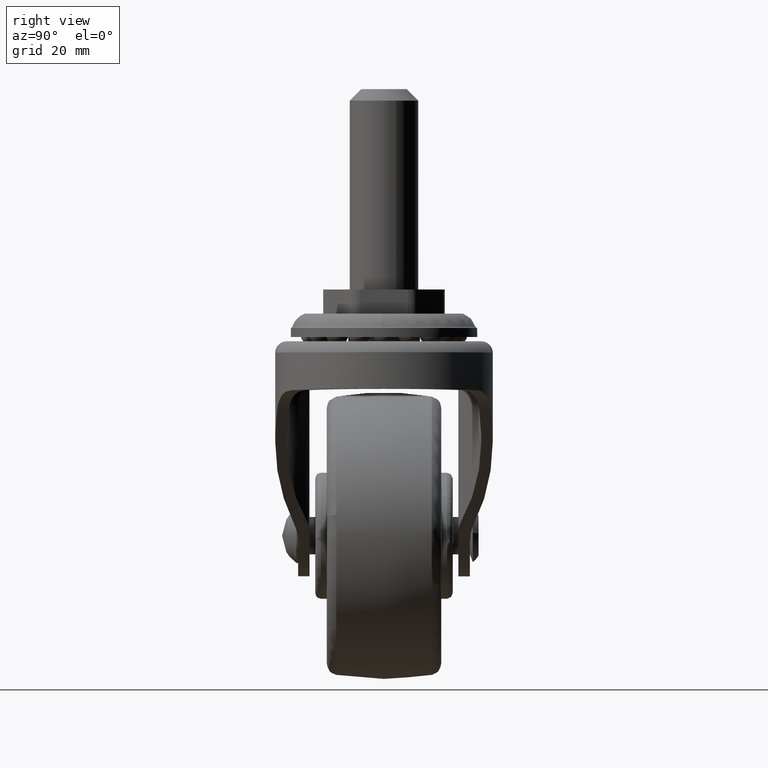
[diagram: clean part render]
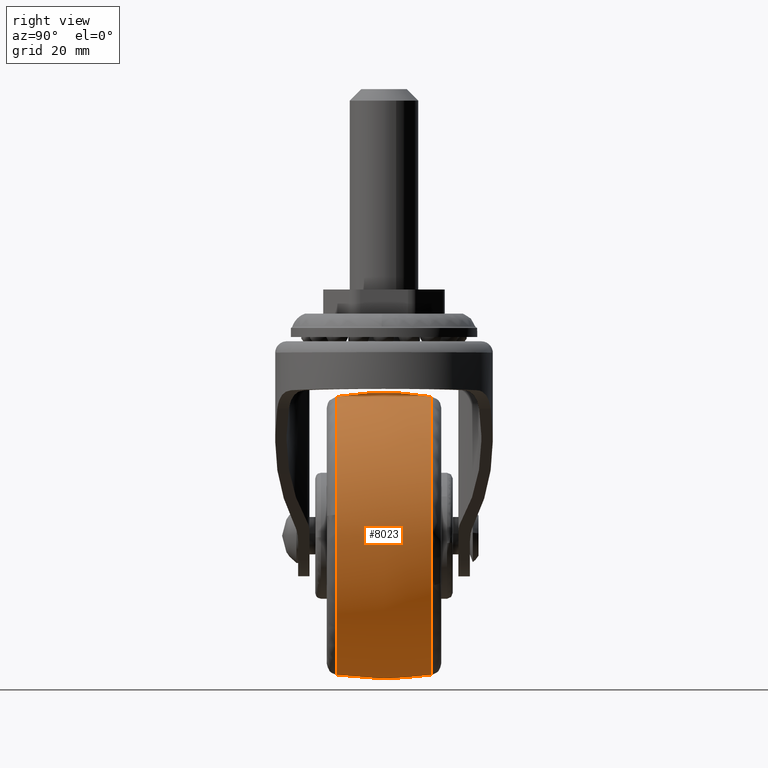
[diagram: same view with one face highlighted and labeled with its STEP entity id]
A machine part, right view. The second image highlights one B-rep face of the part: STEP entity #8023.
In plain terms, the highlighted face is a freeform B-spline surface patch.
Its self-contained STEP definition (entity closure, byte-faithful):
#7509=CARTESIAN_POINT('',(6.400181392199420,-8.333334967038301,-23.442696500243450));
#7510=VERTEX_POINT('',#7509);
#7524=CARTESIAN_POINT('',(24.024899403702388,-8.333334031540151,3.650555248361826));
#7525=VERTEX_POINT('',#7524);
#7526=CARTESIAN_POINT('',(6.400181392199420,-8.333334967038301,-23.442696500243450));
#7527=CARTESIAN_POINT('',(24.300664601270750,-8.333334620679352,-18.555615316724275));
#7528=CARTESIAN_POINT('',(24.300664601270750,-8.333333850788053,0.000000170426897));
#7529=CARTESIAN_POINT('',(24.300664601270750,-8.333333774623277,1.835693446677080));
#7530=CARTESIAN_POINT('',(24.024899403702388,-8.333334031540151,3.650555248361826));
#7538=(BOUNDED_CURVE()B_SPLINE_CURVE(2,(#7526,#7527,#7528,#7529,#7530),.UNSPECIFIED.,.F.,.U.)B_SPLINE_CURVE_WITH_KNOTS((3,2,3),(0.044901926740031,0.250000000000000,0.275897398586561),.UNSPECIFIED.)CURVE()GEOMETRIC_REPRESENTATION_ITEM()RATIONAL_B_SPLINE_CURVE((0.913685083918281,0.759712660601802,1.0,0.969659310276349,0.945604580034014))REPRESENTATION_ITEM(''));
#7539=EDGE_CURVE('',#7510,#7525,#7538,.T.);
#7638=CARTESIAN_POINT('',(0.0,-8.333332842528836,24.300664942124541));
#7639=VERTEX_POINT('',#7638);
#7640=CARTESIAN_POINT('',(24.024899403702388,-8.333334031540151,3.650555248361826));
#7641=CARTESIAN_POINT('',(20.887138773752781,-8.333332842528838,24.300664942124534));
#7642=CARTESIAN_POINT('',(0.0,-8.333332842528836,24.300664942124541));
#7650=(BOUNDED_CURVE()B_SPLINE_CURVE(2,(#7640,#7641,#7642),.UNSPECIFIED.,.F.,.U.)B_SPLINE_CURVE_WITH_KNOTS((3,3),(0.275897398586561,0.500000000000000),.UNSPECIFIED.)CURVE()GEOMETRIC_REPRESENTATION_ITEM()RATIONAL_B_SPLINE_CURVE((0.945604580034014,0.737447470910199,1.0))REPRESENTATION_ITEM(''));
#7651=EDGE_CURVE('',#7525,#7639,#7650,.T.);
#7653=CARTESIAN_POINT('',(-24.138134129548948,-8.333342891131142,2.805835850909152));
#7654=VERTEX_POINT('',#7653);
#7668=CARTESIAN_POINT('',(0.0,-8.333334859047270,-24.300664601270750));
#7669=VERTEX_POINT('',#7668);
#7670=CARTESIAN_POINT('',(-24.138134129548945,-8.333342891131142,2.805835850909153));
#7671=CARTESIAN_POINT('',(-24.300663287451890,-8.333342683975191,1.407625131903747));
#7672=CARTESIAN_POINT('',(-24.300663326510989,-8.333342451344427,-0.000000148179087));
#7673=CARTESIAN_POINT('',(-24.300664000811345,-8.333338435302490,-24.300664671068628));
#7674=CARTESIAN_POINT('',(0.0,-8.333334859047270,-24.300664601270750));
#7682=(BOUNDED_CURVE()B_SPLINE_CURVE(2,(#7670,#7671,#7672,#7673,#7674),.UNSPECIFIED.,.F.,.U.)B_SPLINE_CURVE_WITH_KNOTS((3,2,3),(0.730000150686247,0.750000000000000,1.0),.UNSPECIFIED.)CURVE()GEOMETRIC_REPRESENTATION_ITEM()RATIONAL_B_SPLINE_CURVE((0.956886414777938,0.976568719034844,1.0,0.707106781186548,1.0))REPRESENTATION_ITEM(''));
#7683=EDGE_CURVE('',#7654,#7669,#7682,.T.);
#7685=CARTESIAN_POINT('',(0.0,-8.333334859047270,-24.300664601270750));
#7686=CARTESIAN_POINT('',(3.257597601525596,-8.333334859047270,-24.300664601270743));
#7687=CARTESIAN_POINT('',(6.400181392199420,-8.333334967038301,-23.442696500243450));
#7695=(BOUNDED_CURVE()B_SPLINE_CURVE(2,(#7685,#7686,#7687),.UNSPECIFIED.,.F.,.U.)B_SPLINE_CURVE_WITH_KNOTS((3,3),(0.0,0.044901926740031),.UNSPECIFIED.)CURVE()GEOMETRIC_REPRESENTATION_ITEM()RATIONAL_B_SPLINE_CURVE((1.0,0.947394120584746,0.913685083918281))REPRESENTATION_ITEM(''));
#7696=EDGE_CURVE('',#7669,#7510,#7695,.T.);
#7731=CARTESIAN_POINT('',(22.709083182857029,8.333328525650611,-8.649852755335209));
#7732=VERTEX_POINT('',#7731);
#7733=CARTESIAN_POINT('',(0.0,8.333318185157596,24.300668287269261));
#7734=VERTEX_POINT('',#7733);
#7735=CARTESIAN_POINT('',(22.709083182857029,8.333328525650611,-8.649852755335209));
#7736=CARTESIAN_POINT('',(24.300666596374906,8.333327145853271,-4.471352602687991));
#7737=CARTESIAN_POINT('',(24.300666596374899,8.333325753304667,0.000000845447180));
#7738=CARTESIAN_POINT('',(24.300666596374910,8.333318185157596,24.300668287269261));
#7739=CARTESIAN_POINT('',(0.0,8.333318185157596,24.300668287269261));
#7747=(BOUNDED_CURVE()B_SPLINE_CURVE(2,(#7735,#7736,#7737,#7738,#7739),.UNSPECIFIED.,.F.,.U.)B_SPLINE_CURVE_WITH_KNOTS((3,2,3),(0.189552765750256,0.250000000000000,0.500000000000000),.UNSPECIFIED.)CURVE()GEOMETRIC_REPRESENTATION_ITEM()RATIONAL_B_SPLINE_CURVE((0.892609502250083,0.929181659968887,1.0,0.707106781186548,1.0))REPRESENTATION_ITEM(''));
#7748=EDGE_CURVE('',#7732,#7734,#7747,.T.);
#7851=CARTESIAN_POINT('',(0.0,8.333333321451740,-24.300666596374899));
#7852=VERTEX_POINT('',#7851);
#7853=CARTESIAN_POINT('',(0.0,8.333333321451740,-24.300666596374899));
#7854=CARTESIAN_POINT('',(16.747712996538606,8.333333321451741,-24.300666596374903));
#7855=CARTESIAN_POINT('',(22.709083182857029,8.333328525650611,-8.649852755335209));
#7863=(BOUNDED_CURVE()B_SPLINE_CURVE(2,(#7853,#7854,#7855),.UNSPECIFIED.,.F.,.U.)B_SPLINE_CURVE_WITH_KNOTS((3,3),(0.0,0.189552765750256),.UNSPECIFIED.)CURVE()GEOMETRIC_REPRESENTATION_ITEM()RATIONAL_B_SPLINE_CURVE((1.0,0.777925121217661,0.892609502250083))REPRESENTATION_ITEM(''));
#7864=EDGE_CURVE('',#7852,#7732,#7863,.T.);
#7866=CARTESIAN_POINT('',(-24.138137454405449,8.333328319628095,2.805836093557987));
#7867=VERTEX_POINT('',#7866);
#7868=CARTESIAN_POINT('',(-24.138137454405456,8.333328319628095,2.805836093557987));
#7869=CARTESIAN_POINT('',(-24.300666574941150,8.333328448630418,1.407625326022537));
#7870=CARTESIAN_POINT('',(-24.300666575578362,8.333328593496685,-2.417403E-009));
#7871=CARTESIAN_POINT('',(-24.300666586578963,8.333331094408507,-24.300666597513597));
#7872=CARTESIAN_POINT('',(0.0,8.333333321451740,-24.300666596374899));
#7880=(BOUNDED_CURVE()B_SPLINE_CURVE(2,(#7868,#7869,#7870,#7871,#7872),.UNSPECIFIED.,.F.,.U.)B_SPLINE_CURVE_WITH_KNOTS((3,2,3),(0.730000151680777,0.750000000000000,1.0),.UNSPECIFIED.)CURVE()GEOMETRIC_REPRESENTATION_ITEM()RATIONAL_B_SPLINE_CURVE((0.956886416735417,0.976568720200008,1.0,0.707106781186548,1.0))REPRESENTATION_ITEM(''));
#7881=EDGE_CURVE('',#7867,#7852,#7880,.T.);
#7931=CARTESIAN_POINT('',(-23.989886262662093,-9.172674098402839,2.788624460939059));
#7932=CARTESIAN_POINT('',(-24.832791040827100,-4.625588889341366,2.886605120659473));
#7933=CARTESIAN_POINT('',(-24.832791040827100,0.0,2.886605120659473));
#7934=CARTESIAN_POINT('',(-24.832791040827097,4.625582629713152,2.886605120659473));
#7935=CARTESIAN_POINT('',(-23.989888524641639,9.172661896050858,2.788624723875340));
#7936=CARTESIAN_POINT('',(-24.151419612097563,-9.172674098402840,1.398990706066609));
#7937=CARTESIAN_POINT('',(-25.0,-4.625588889341365,1.448145418091538));
#7938=CARTESIAN_POINT('',(-25.0,0.0,1.448145418091539));
#7939=CARTESIAN_POINT('',(-25.0,4.625582629713152,1.448145418091538));
#7940=CARTESIAN_POINT('',(-24.151421889307908,9.172661896050860,1.398990837975877));
#7941=CARTESIAN_POINT('',(-24.151419612097570,-9.172674098402840,0.0));
#7942=CARTESIAN_POINT('',(-25.000000000000004,-4.625588889341366,0.0));
#7943=CARTESIAN_POINT('',(-25.0,0.0,0.0));
#7944=CARTESIAN_POINT('',(-25.000000000000004,4.625582629713151,0.0));
#7945=CARTESIAN_POINT('',(-24.151421889307908,9.172661896050862,0.0));
#7946=CARTESIAN_POINT('',(-24.151419612097566,-9.172674098402840,-24.151419612097566));
#7947=CARTESIAN_POINT('',(-25.0,-4.625588889341366,-25.0));
#7948=CARTESIAN_POINT('',(-25.0,0.0,-25.0));
#7949=CARTESIAN_POINT('',(-24.999999999999996,4.625582629713152,-24.999999999999996));
#7950=CARTESIAN_POINT('',(-24.151421889307915,9.172661896050862,-24.151421889307915));
#7951=CARTESIAN_POINT('',(0.0,-9.172674098402840,-24.151419612097570));
#7952=CARTESIAN_POINT('',(0.0,-4.625588889341366,-25.000000000000004));
#7953=CARTESIAN_POINT('',(0.0,0.0,-25.0));
#7954=CARTESIAN_POINT('',(0.0,4.625582629713151,-25.000000000000004));
#7955=CARTESIAN_POINT('',(0.0,9.172661896050862,-24.151421889307908));
#7956=CARTESIAN_POINT('',(24.151419612097566,-9.172674098402840,-24.151419612097566));
#7957=CARTESIAN_POINT('',(25.0,-4.625588889341366,-25.0));
#7958=CARTESIAN_POINT('',(25.0,0.0,-25.0));
#7959=CARTESIAN_POINT('',(24.999999999999996,4.625582629713152,-24.999999999999996));
#7960=CARTESIAN_POINT('',(24.151421889307915,9.172661896050862,-24.151421889307915));
#7961=CARTESIAN_POINT('',(24.151419612097570,-9.172674098402840,0.0));
#7962=CARTESIAN_POINT('',(25.000000000000004,-4.625588889341366,0.0));
#7963=CARTESIAN_POINT('',(25.0,0.0,0.0));
#7964=CARTESIAN_POINT('',(25.000000000000004,4.625582629713151,0.0));
#7965=CARTESIAN_POINT('',(24.151421889307908,9.172661896050862,0.0));
#7966=CARTESIAN_POINT('',(24.151419612097566,-9.172674098402840,24.151419612097566));
#7967=CARTESIAN_POINT('',(25.0,-4.625588889341366,25.0));
#7968=CARTESIAN_POINT('',(25.0,0.0,25.0));
#7969=CARTESIAN_POINT('',(24.999999999999996,4.625582629713152,24.999999999999996));
#7970=CARTESIAN_POINT('',(24.151421889307915,9.172661896050862,24.151421889307915));
#7971=CARTESIAN_POINT('',(0.0,-9.172674098402840,24.151419612097570));
#7972=CARTESIAN_POINT('',(0.0,-4.625588889341366,25.000000000000004));
#7973=CARTESIAN_POINT('',(0.0,0.0,25.0));
#7974=CARTESIAN_POINT('',(0.0,4.625582629713151,25.000000000000004));
#7975=CARTESIAN_POINT('',(0.0,9.172661896050862,24.151421889307908));
#7983=(BOUNDED_SURFACE()B_SPLINE_SURFACE(2,2,((#7931,#7936,#7941,#7946,#7951,#7956,#7961,#7966,#7971),(#7932,#7937,#7942,#7947,#7952,#7957,#7962,#7967,#7972),(#7933,#7938,#7943,#7948,#7953,#7958,#7963,#7968,#7973),(#7934,#7939,#7944,#7949,#7954,#7959,#7964,#7969,#7974),(#7935,#7940,#7945,#7950,#7955,#7960,#7965,#7970,#7975)),.UNSPECIFIED.,.F.,.F.,.U.)B_SPLINE_SURFACE_WITH_KNOTS((3,2,3),(3,2,2,2,3),(0.0,9.400050528054186,18.800088643087498),(0.0,3.313707807691297,44.735064045000797,86.156420282310307,127.577776519619800),.UNSPECIFIED.)GEOMETRIC_REPRESENTATION_ITEM()RATIONAL_B_SPLINE_SURFACE(((0.918952094748725,0.937854241504230,0.960356796271374,0.679074803002076,0.960356796271374,0.679074803002076,0.960356796271374,0.679074803002076,0.960356796271374),(0.933740149649275,0.952946475464336,0.975811148145135,0.690002680010856,0.975811148145135,0.690002680010856,0.975811148145135,0.690002680010856,0.975811148145135),(0.956886126402807,0.976568547383107,1.0,0.707106781186548,1.0,0.707106781186548,1.0,0.707106781186548,1.0),(0.933740180214163,0.952946506657921,0.975811180087168,0.690002702597284,0.975811180087168,0.690002702597284,0.975811180087168,0.690002702597284,0.975811180087168),(0.918952133804793,0.937854281363651,0.960356837087168,0.679074831863201,0.960356837087168,0.679074831863201,0.960356837087168,0.679074831863201,0.960356837087168)))REPRESENTATION_ITEM('')SURFACE());
#7984=ORIENTED_EDGE('',*,*,#7683,.F.);
#7985=CARTESIAN_POINT('',(-24.138134129548945,-8.333342891131142,2.805835850909152));
#7986=CARTESIAN_POINT('',(-24.832793681197245,-4.196015690447301,2.886584219473892));
#7987=CARTESIAN_POINT('',(-24.832793896290941,0.000000071288920,2.886584208263935));
#7988=CARTESIAN_POINT('',(-24.832794111384246,4.196008319076535,2.886584197053998));
#7989=CARTESIAN_POINT('',(-24.138137454405456,8.333328319628095,2.805836093557987));
#7997=(BOUNDED_CURVE()B_SPLINE_CURVE(2,(#7985,#7986,#7987,#7988,#7989),.UNSPECIFIED.,.F.,.U.)B_SPLINE_CURVE_WITH_KNOTS((3,2,3),(0.417925249551456,0.500000000000000,0.582074606706715),.UNSPECIFIED.)CURVE()GEOMETRIC_REPRESENTATION_ITEM()RATIONAL_B_SPLINE_CURVE((0.921707329659947,0.935842409675519,0.956886118190660,0.935842446530473,0.921707379170987))REPRESENTATION_ITEM(''));
#7998=EDGE_CURVE('',#7654,#7867,#7997,.T.);
#7999=ORIENTED_EDGE('',*,*,#7998,.T.);
#8000=ORIENTED_EDGE('',*,*,#7881,.T.);
#8001=ORIENTED_EDGE('',*,*,#7864,.T.);
#8002=ORIENTED_EDGE('',*,*,#7748,.T.);
#8003=CARTESIAN_POINT('',(0.0,-8.333332842528840,24.300664942124570));
#8004=CARTESIAN_POINT('',(0.0,-4.196010594383109,25.000000000000004));
#8005=CARTESIAN_POINT('',(0.0,0.0,25.0));
#8006=CARTESIAN_POINT('',(0.0,4.196003036585472,25.0));
#8007=CARTESIAN_POINT('',(0.0,8.333318185157596,24.300668287269254));
#8015=(BOUNDED_CURVE()B_SPLINE_CURVE(2,(#8003,#8004,#8005,#8006,#8007),.UNSPECIFIED.,.F.,.U.)B_SPLINE_CURVE_WITH_KNOTS((3,2,3),(0.417925347716266,0.500000000000000,0.582074507703064),.UNSPECIFIED.)CURVE()GEOMETRIC_REPRESENTATION_ITEM()RATIONAL_B_SPLINE_CURVE((0.963236215836284,0.978008163201508,1.0,0.978008201941782,0.963236267880098))REPRESENTATION_ITEM(''));
#8016=EDGE_CURVE('',#7639,#7734,#8015,.T.);
#8017=ORIENTED_EDGE('',*,*,#8016,.F.);
#8018=ORIENTED_EDGE('',*,*,#7651,.F.);
#8019=ORIENTED_EDGE('',*,*,#7539,.F.);
#8020=ORIENTED_EDGE('',*,*,#7696,.F.);
#8021=EDGE_LOOP('',(#7984,#7999,#8000,#8001,#8002,#8017,#8018,#8019,#8020));
#8022=FACE_OUTER_BOUND('',#8021,.T.);
#8023=ADVANCED_FACE('',(#8022),#7983,.T.);